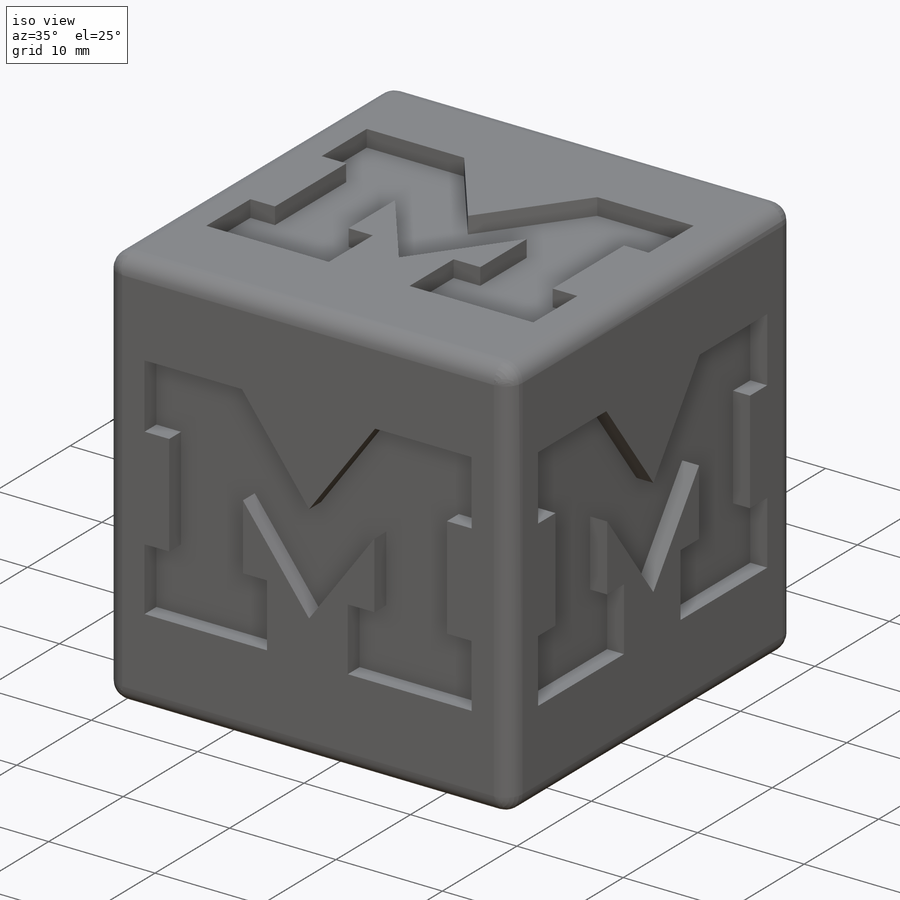
[diagram: iso view]
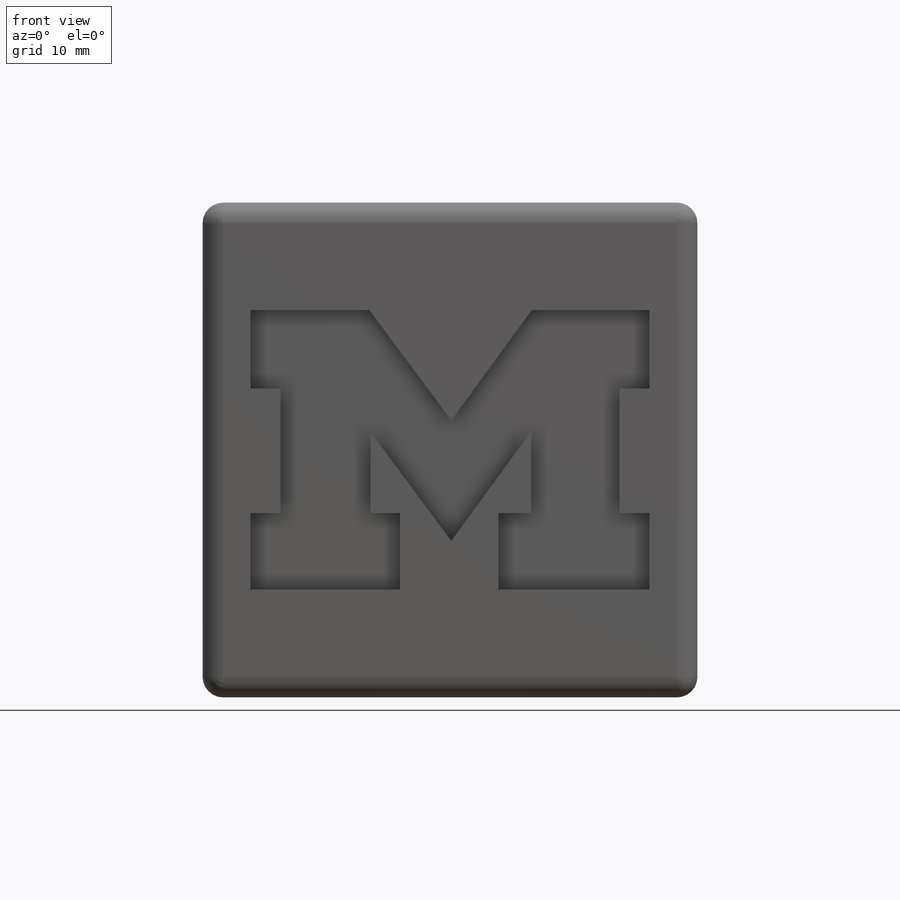
[diagram: front view]
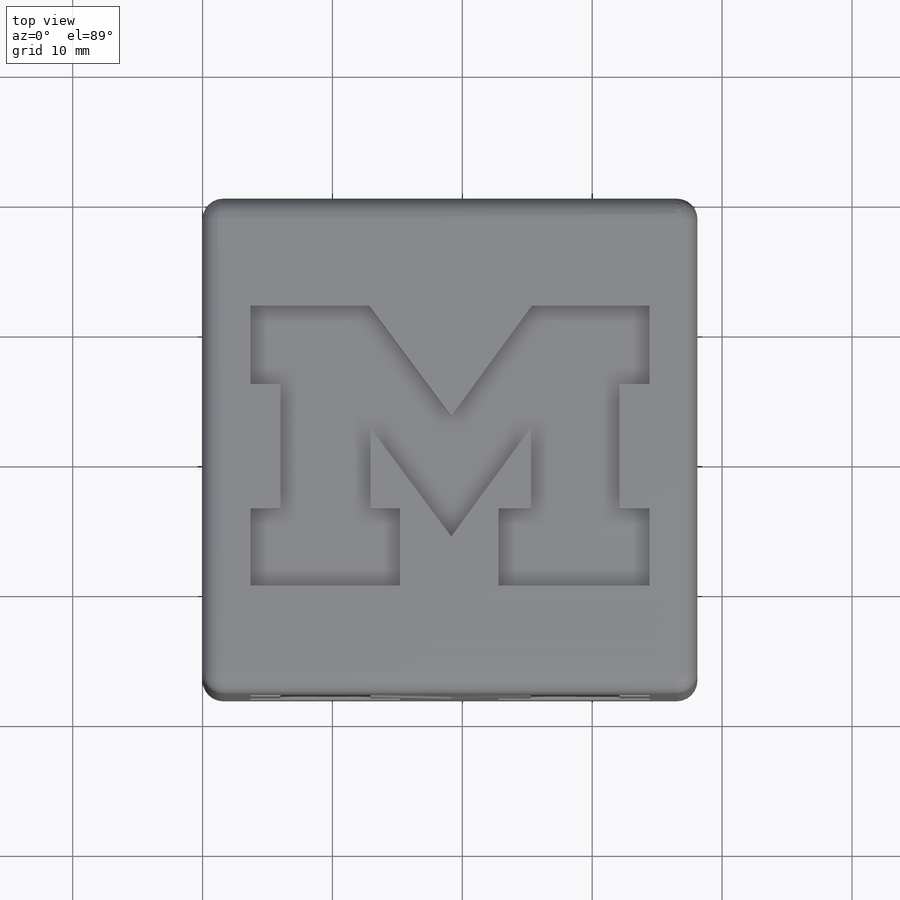
[diagram: top view]
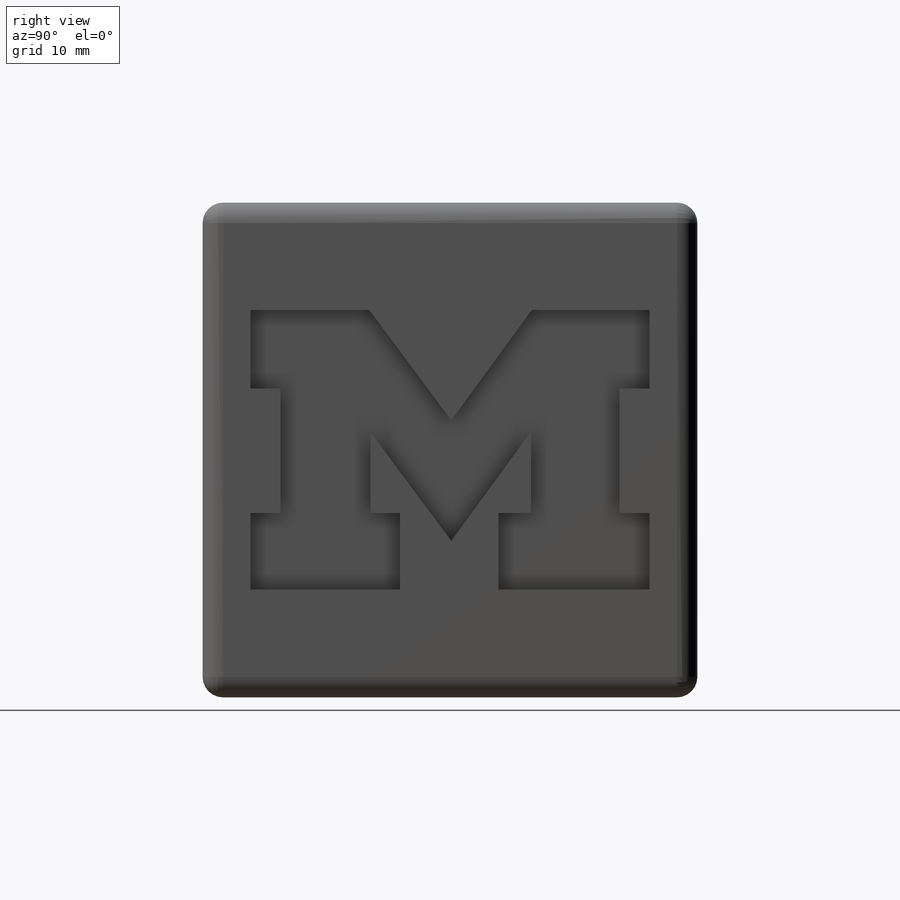
[diagram: right view]
SOLIDWORKS PART (.sldprt)
format: sldprt  version: not decoded by parser v0  size: 2,484,224 bytes
history: native  units: mm
features: sketch x7, extrude x6, cut_extrude x6, material x1, fillet x1 (+13 scaffold rows collapsed)
feature tree (34):
  scaffold x13  (default folders/planes/origin — collapsed)
  material  "Material <not specified>"
  sketch  "Sketch1"  dims[D1=38.1mm D2=38.1mm]
  extrude  "Boss-Extrude1"  Depth=38.1mm
  sketch  "Sketch2"
  cut_extrude  "Cut-Extrude1"  Depth=1.5875mm
  sketch  "Sketch3"
  extrude  "Block1-2"  [1 undecoded]
  cut_extrude  "Cut-Extrude3"  Depth=1.5875mm
  sketch  "Sketch4"
  extrude  "Block1-3"  [1 undecoded]
  cut_extrude  "Cut-Extrude4"  Depth=1.5875mm
  sketch  "Sketch5"
  extrude  "Block1-4"  [1 undecoded]
  cut_extrude  "Cut-Extrude5"  Depth=1.5875mm
  sketch  "Sketch6"
  extrude  "Block1-5"  [1 undecoded]
  cut_extrude  "Cut-Extrude6"  Depth=1.5875mm
  sketch  "Sketch7"
  extrude  "Block1-6"  [1 undecoded]
  cut_extrude  "Cut-Extrude7"  Depth=1.5875mm
  fillet  "Fillet1"  Radius=1.5875mm
decode coverage: 9 of 20 modeling features carry decoded parameters
note: 5 parameter values undecoded
summary: no parameter record found for 5 features
note: suppression state not decoded; provenance and decode notes live in map.json
